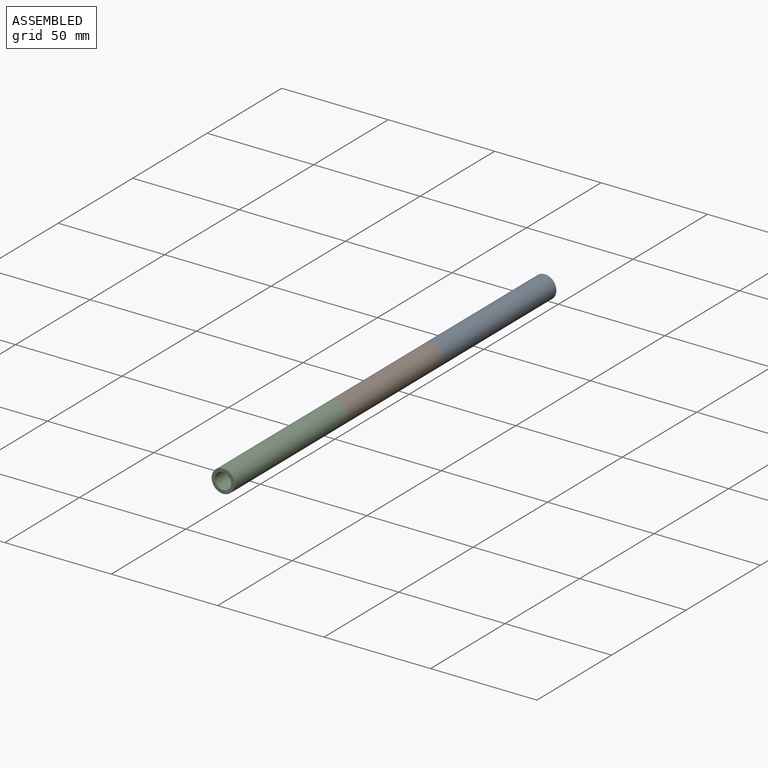
[diagram: assembled view]
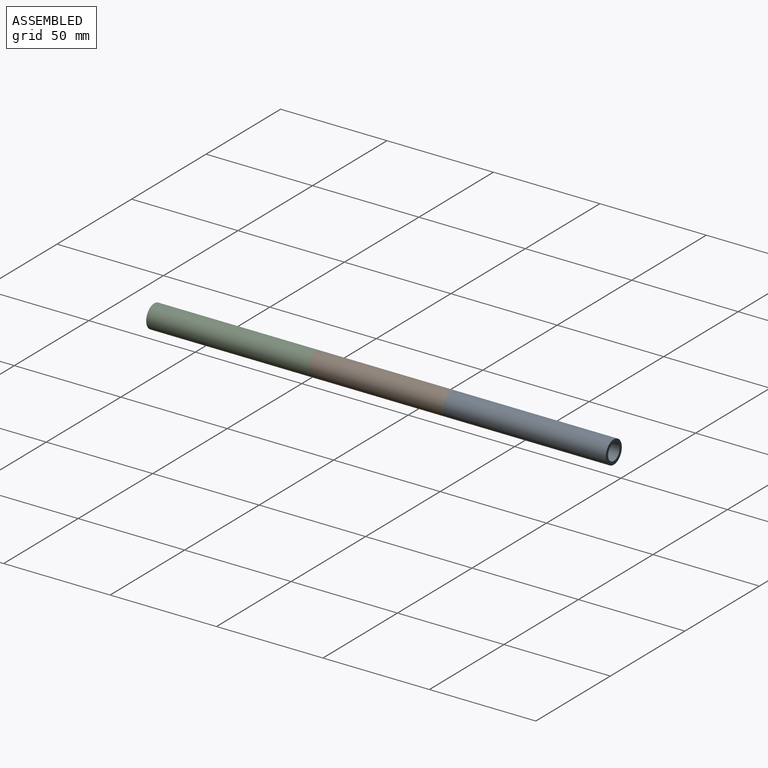
[diagram: assembled view, second angle]
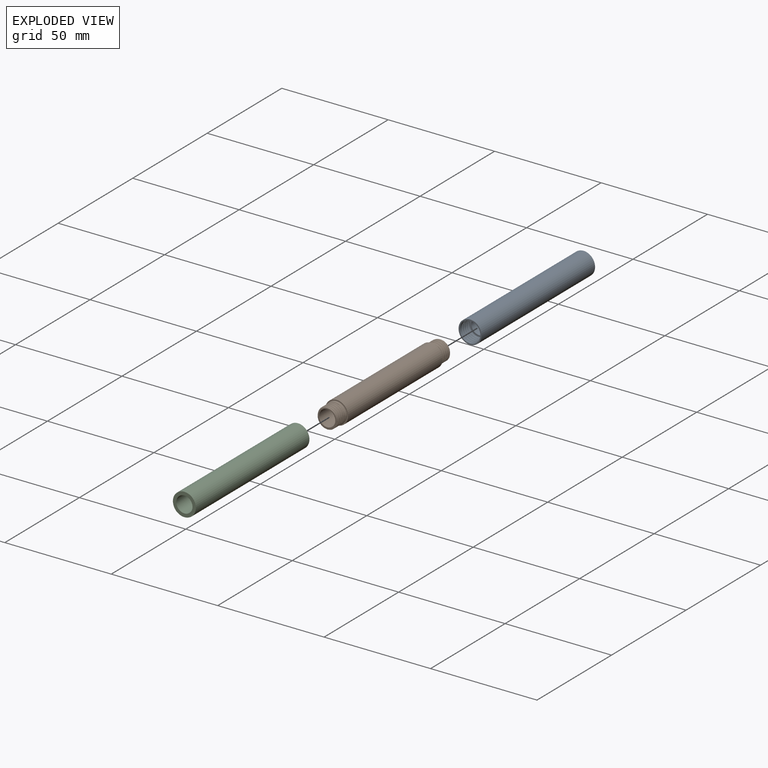
[diagram: exploded view]
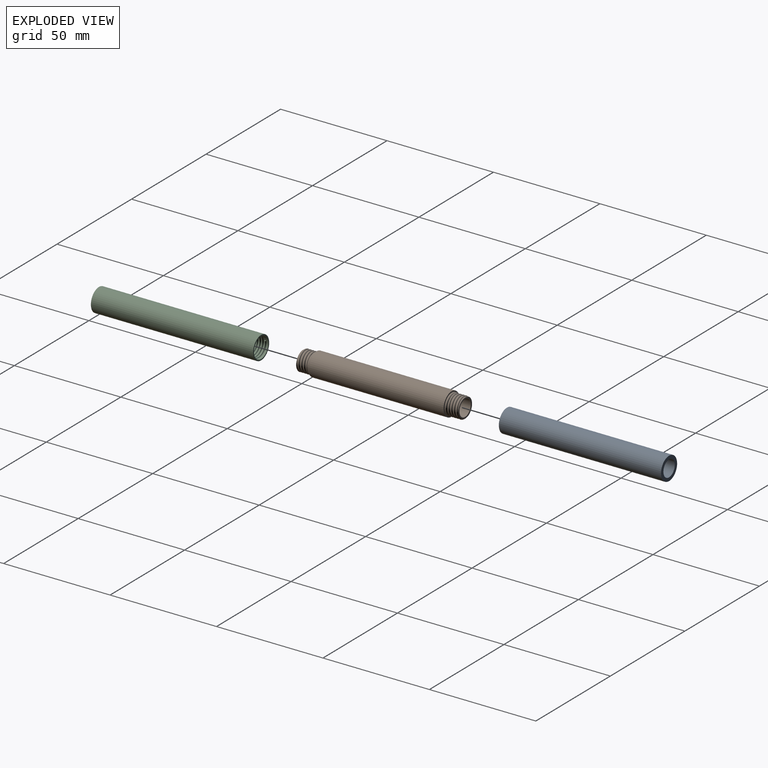
[diagram: exploded view, second angle]
ASSEMBLY  parts=3 mates=4
PART A: 19 faces, bbox 10.8x76.2x10.8 mm
  f0: cylinder r=3.81mm len=69.85mm, axis (0,-1,0), area 1672.1mm2, adj f1,f9
  f1: plane 9.25x9.15mm, normal (0,1,0), area 20.7mm2, adj f0,f11,f13
  f2: cylinder r=4.83mm len=9.65mm, axis (0,-1,0), area 46.9mm2, adj f3,f7,f12,f14,f15,f17,f18
  f3: cylinder r=4.83mm len=9.65mm, axis (0,-1,0), area 8.7mm2, adj f2,f4,f12,f14
  f4: cylinder r=4.83mm len=9.65mm, axis (0,-1,0), area 8.7mm2, adj f3,f5,f12,f14
  f5: cylinder r=4.83mm len=9.65mm, axis (0,-1,0), area 8.7mm2, adj f4,f6,f12,f13,f14
  f6: cylinder r=4.83mm len=4.69mm, axis (0,-1,0), area 0.9mm2, adj f5,f12,f13
  f7: plane 10.8x10.8mm, normal (0,1,0), area 18.4mm2, adj f2,f8
  f8: cylinder r=5.4mm len=76.2mm, axis (0,-1,0), area 2584.2mm2, adj f7,f9
  f9: plane 10.8x10.8mm, normal (0,-1,0), area 45.9mm2, adj f0,f8
  f10: plane 0.44x0.13mm, normal (0,0,1), area 0mm2, adj f16,f17
  f11: bspline ~9.84x9.84mm, area 113.3mm2, adj f1,f12,f13,f14,f16
  f12: bspline ~9.67x9.67mm, area 18mm2, adj f2,f3,f4,f5,f6,f11,f13,f15
  f13: torus R=4.7mm, axis (0,1,0), area 2mm2, adj f1,f5,f6,f11,f12,f14
  f14: bspline ~9.67x9.67mm, area 21.4mm2, adj f2,f3,f4,f5,f11,f13,f18
  f15: bspline ~0.3x0.3mm, area 0.1mm2, adj f2,f12,f16,f17
  f16: bspline ~0.77x0.36mm, area 0.2mm2, adj f10,f11,f15,f18
  f17: cylinder r=0.13mm len=0.44mm, axis (0,-1,0), area 0.1mm2, adj f2,f10,f15,f18
  f18: bspline ~0.38x0.32mm, area 0.1mm2, adj f2,f14,f16,f17
PART B: 34 faces, bbox 11.9x77.4x10.8 mm
  f0: cylinder r=4.38mm len=8.76mm, axis (0,-1,0), area 31.8mm2, adj f23,f26,f28,f31
  f1: cylinder r=4.38mm len=8.76mm, axis (0,-1,0), area 31.5mm2, adj f13,f16,f17,f18
  f2: cylinder r=3.81mm len=76.2mm, axis (0,-1,0), area 1824.1mm2, adj f8,f11
  f3: plane 10.8x10.8mm, normal (0,1,0), area 16.4mm2, adj f4,f32
  f4: cylinder r=5.4mm len=63.5mm, axis (0,-1,0), area 2153.5mm2, adj f3,f5
  f5: plane 10.8x10.8mm, normal (0,-1,0), area 16.4mm2, adj f4,f33
  f6: torus R=4.38mm, axis (0,-1,0), area 24.8mm2, adj f12,f13,f32
  f7: bspline ~11.88x10.29mm, area 118mm2, adj f12,f16,f17,f21
  f8: plane 8.86x8.82mm, normal (0,1,0), area 15.3mm2, adj f2,f18,f19,f20,f21
  f9: torus R=4.38mm, axis (0,1,0), area 24.8mm2, adj f22,f23,f33
  f10: bspline ~11.88x10.29mm, area 118mm2, adj f22,f26,f27,f28
  f11: plane 8.86x8.82mm, normal (0,-1,0), area 15.3mm2, adj f2,f27,f29,f30,f31
  f12: bspline ~9.32x9.32mm, area 3.4mm2, adj f6,f7,f14,f15
  f13: torus R=4.51mm, axis (0,-1,0), area 1.1mm2, adj f1,f6,f14,f15
  f14: sphere r=0.13mm, area 0.2mm2, adj f12,f13,f16
  f15: sphere r=0.13mm, area 0mm2, adj f12,f13,f17
  f16: bspline ~8.97x8.97mm, area 18.2mm2, adj f1,f7,f14,f19
  f17: bspline ~8.97x8.97mm, area 19.1mm2, adj f1,f7,f15,f20
  f18: torus R=4.25mm, axis (0,1,0), area 1.2mm2, adj f1,f8,f19,f20
  f19: bspline ~6.5x2.02mm, area 1.4mm2, adj f8,f16,f18,f21
  f20: bspline ~4.32x3.28mm, area 0.7mm2, adj f8,f17,f18,f21
  f21: bspline ~7.86x6.06mm, area 2.3mm2, adj f7,f8,f19,f20
  f22: bspline ~9.32x9.32mm, area 3.4mm2, adj f9,f10,f24,f25
  f23: torus R=4.51mm, axis (0,-1,0), area 1.1mm2, adj f0,f9,f24,f25
  f24: sphere r=0.13mm, area 0.2mm2, adj f22,f23,f26
  f25: sphere r=0.13mm, area 0mm2, adj f22,f23,f28
  f26: bspline ~8.97x8.97mm, area 18.2mm2, adj f0,f10,f24,f29
  f27: bspline ~7.86x6.06mm, area 2.3mm2, adj f10,f11,f29,f30
  f28: bspline ~8.97x8.97mm, area 19.1mm2, adj f0,f10,f25,f30
  f29: bspline ~6.5x2.02mm, area 1.4mm2, adj f11,f26,f27,f31
  f30: bspline ~4.32x3.28mm, area 0.7mm2, adj f11,f27,f28,f31
  f31: torus R=4.25mm, axis (0,-1,0), area 1.2mm2, adj f0,f11,f29,f30
  f32: torus R=4.89mm, axis (0,1,0), area 8.5mm2, adj f3,f6
  f33: torus R=4.89mm, axis (0,-1,0), area 8.5mm2, adj f5,f9
PART C: same geometry as A
PLACE A rot(axis=(-0.4,0,-0.91),180deg) t=(-2.65,144.74,-1.54)mm
PLACE B rot(axis=(0,-1,0),62.3deg) t=(-2.65,-1.31,-1.54)mm
PLACE C rot(axis=(0,1,0),10.7deg) t=(-2.65,-71.16,-1.54)mm fixed
MATE cylindrical C.f0 <-> B.f0  axis (0,-1,0) through (-2.65,-33.06,-1.54)mm
MATE planar A.f0 <-> B.f0  axis (0,-1,0) through (-2.65,68.54,-1.54)mm
MATE cylindrical A.f0 <-> B.f0  axis (0,1,0) through (-2.65,106.64,-1.54)mm
MATE planar C.f0 <-> B.f0  axis (0,-1,0) through (-2.65,5.04,-1.54)mm
